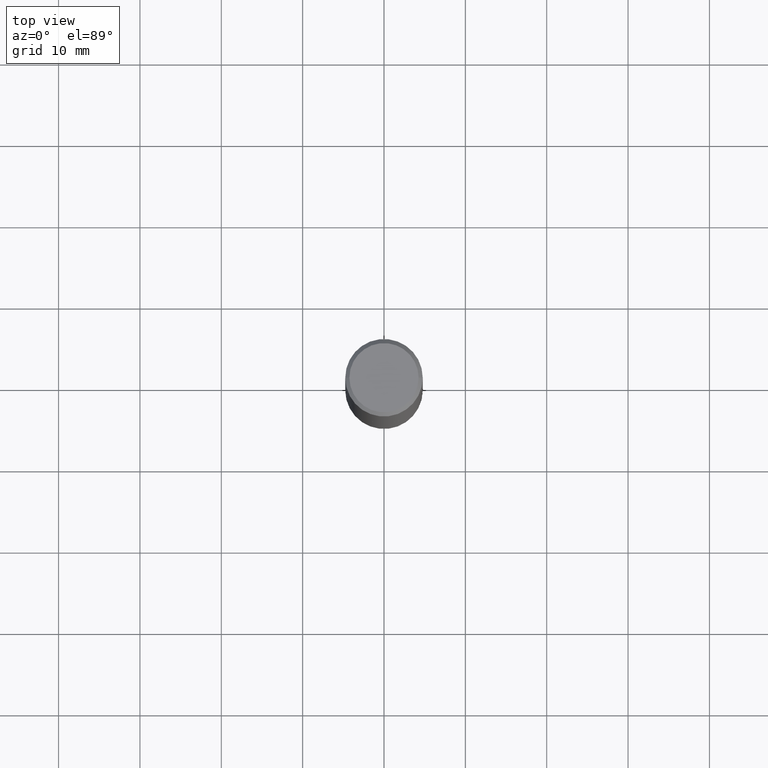
[diagram: clean part render]
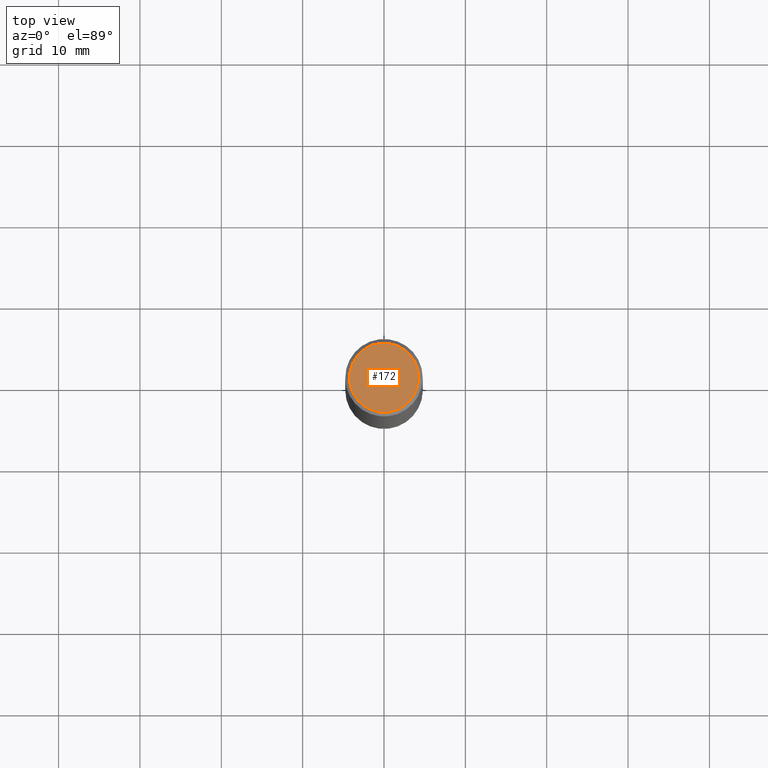
[diagram: same view with one face highlighted and labeled with its STEP entity id]
A machine part, top view. The second image highlights one B-rep face of the part: STEP entity #172.
In plain terms, the highlighted planar face has unit normal (0, -0, -1).
Its self-contained STEP definition (entity closure, byte-faithful):
#18 = CARTESIAN_POINT ( 'NONE',  ( 0.1675000000000000655, -1.252653207992878880E-15, -3.414809992079482230E-17 ) ) ;
#27 = DIRECTION ( 'NONE',  ( -2.445468806185136597E-29, 3.491481338843145583E-15, 1.000000000000000000 ) ) ;
#31 = CARTESIAN_POINT ( 'NONE',  ( -0.1675000000000000655, 1.204561061900881244E-15, -3.414809992081159176E-17 ) ) ;
#66 = AXIS2_PLACEMENT_3D ( 'NONE', #208, #244, #342 ) ;
#84 = CARTESIAN_POINT ( 'NONE',  ( 8.350811314681758556E-46, -1.192274536304357760E-31, -3.414809992080329023E-17 ) ) ;
#85 = EDGE_LOOP ( 'NONE', ( #86, #347 ) ) ;
#86 = ORIENTED_EDGE ( 'NONE', *, *, #127, .T. ) ;
#99 = VERTEX_POINT ( 'NONE', #18 ) ;
#123 = DIRECTION ( 'NONE',  ( 1.000000000000000000, -6.982962677686265922E-15, 4.875370901645438946E-29 ) ) ;
#124 = CIRCLE ( 'NONE', #403, 0.1675000000000000655 ) ;
#127 = EDGE_CURVE ( 'NONE', #288, #99, #211, .T. ) ;
#172 = ADVANCED_FACE ( 'NONE', ( #212 ), #180, .F. ) ;
#180 = PLANE ( 'NONE',  #279 ) ;
#208 = CARTESIAN_POINT ( 'NONE',  ( 8.350811314681758556E-46, -1.192274536304357760E-31, -3.414809992080329023E-17 ) ) ;
#211 = CIRCLE ( 'NONE', #66, 0.1675000000000000655 ) ;
#212 = FACE_OUTER_BOUND ( 'NONE', #85, .T. ) ;
#228 = EDGE_CURVE ( 'NONE', #99, #288, #124, .T. ) ;
#244 = DIRECTION ( 'NONE',  ( -2.445468806185136597E-29, 3.491481338843145583E-15, 1.000000000000000000 ) ) ;
#279 = AXIS2_PLACEMENT_3D ( 'NONE', #346, #317, #348 ) ;
#288 = VERTEX_POINT ( 'NONE', #31 ) ;
#317 = DIRECTION ( 'NONE',  ( 2.438088387897960049E-29, -3.491481338843145188E-15, -1.000000000000000000 ) ) ;
#342 = DIRECTION ( 'NONE',  ( 1.000000000000000000, -6.982962677686265922E-15, 4.875370901645438946E-29 ) ) ;
#346 = CARTESIAN_POINT ( 'NONE',  ( 1.169646248512449792E-15, 0.1675000000000000655, -6.018971742166287723E-16 ) ) ;
#347 = ORIENTED_EDGE ( 'NONE', *, *, #228, .T. ) ;
#348 = DIRECTION ( 'NONE',  ( -1.000000000000000000, 6.982962677686265922E-15, -4.876176775795935793E-29 ) ) ;
#403 = AXIS2_PLACEMENT_3D ( 'NONE', #84, #27, #123 ) ;